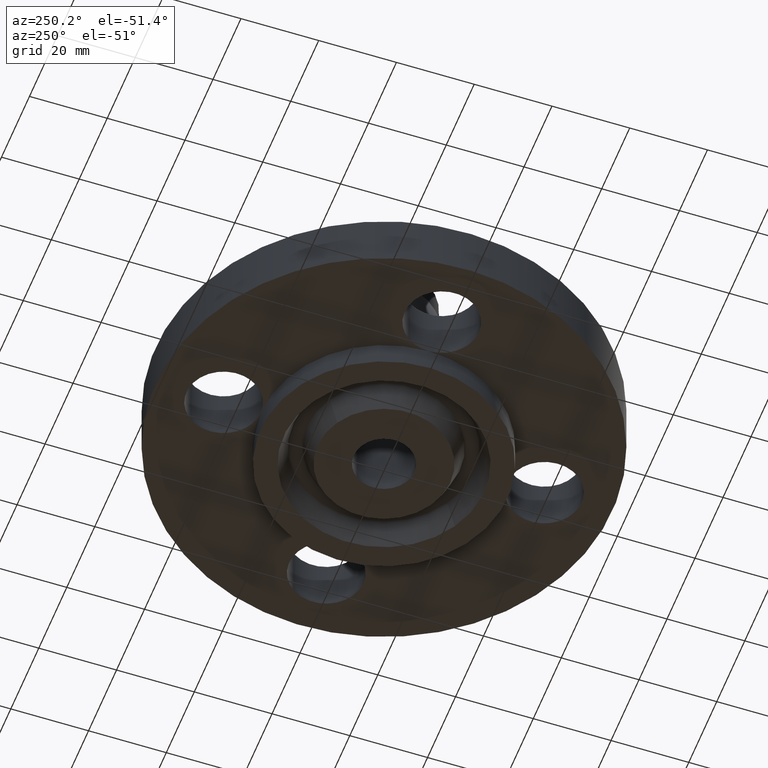
[diagram: clean part render]
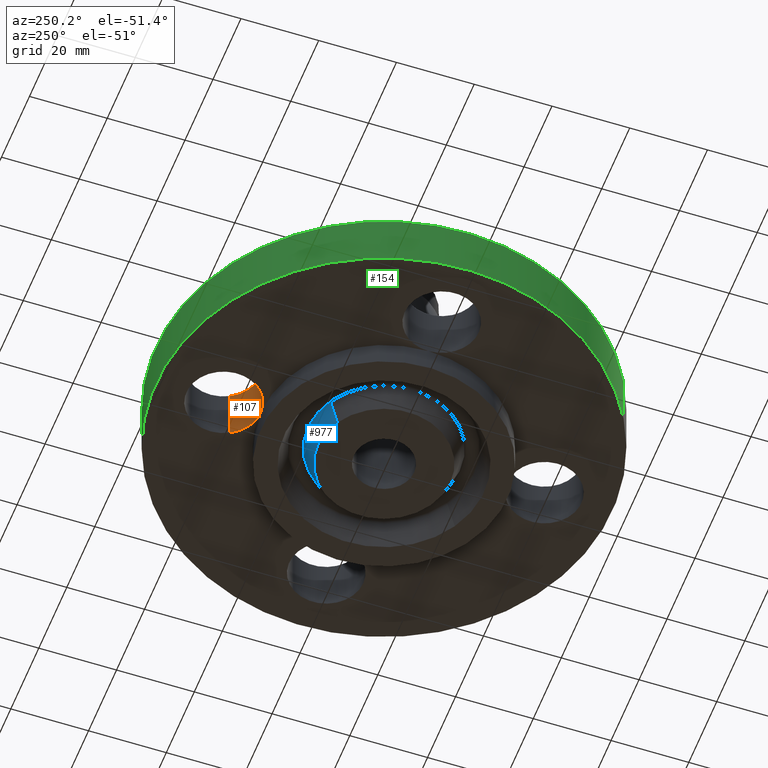
[diagram: same view with three faces highlighted in distinct colors, each labeled with its STEP entity id]
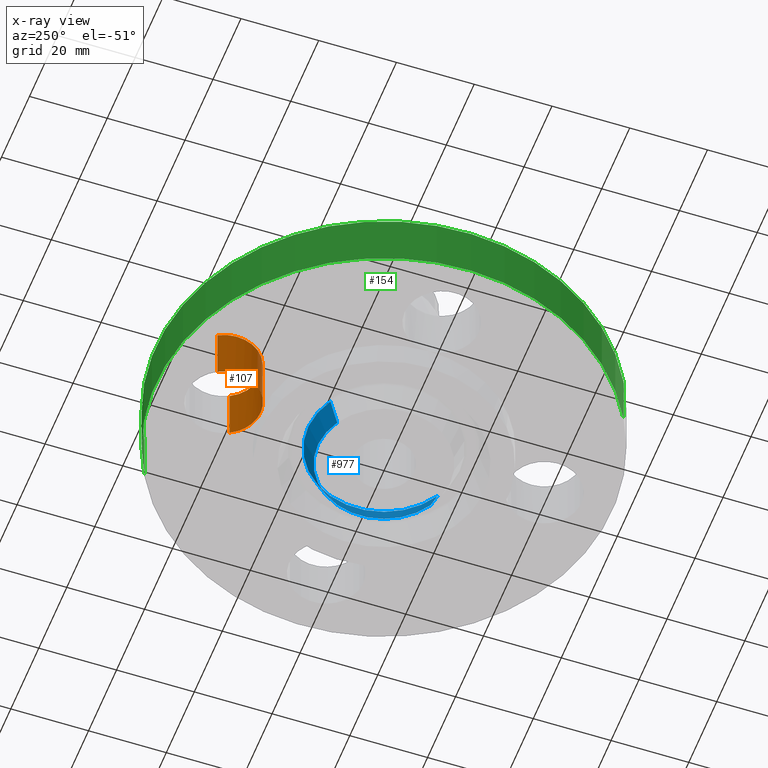
[diagram: x-ray of the same camera — body ghosted, the three highlighted faces saturated]
A machine part, auxiliary view with three faces highlighted in distinct colors.
The next image is the same camera in x-ray (body ghosted, the three faces saturated) — at least one of them is partly hidden behind the body in this view.
Their STEP definitions:

[orange] entity #107 — the highlighted cylindrical surface (partial cylindrical patch) has radius 9.525 mm, axis along (0, -0, -1).
#38=AXIS2_PLACEMENT_3D('Cylinder Axis2P3D',#35,#36,#37) ;
#85=AXIS2_PLACEMENT_3D('Circle Axis2P3D',#83,#84,$) ;
#92=AXIS2_PLACEMENT_3D('Circle Axis2P3D',#90,#91,$) ;
#97=AXIS2_PLACEMENT_3D('Circle Axis2P3D',#95,#96,$) ;
#35=CARTESIAN_POINT('Axis2P3D Location',(0.,1.62500000001,0.556062992128)) ;
#40=CARTESIAN_POINT('Line Origine',(-0.32909346071,1.80478457698,0.280000000001)) ;
#44=CARTESIAN_POINT('Vertex',(-0.32909346071,1.80478457698,-6.99353086378E-017)) ;
#46=CARTESIAN_POINT('Vertex',(-0.32909346071,1.80478457698,0.560000000002)) ;
#53=CARTESIAN_POINT('Vertex',(0.32909346071,1.44521542303,-6.99353086378E-017)) ;
#56=CARTESIAN_POINT('Line Origine',(0.32909346071,1.44521542303,0.280000000001)) ;
#60=CARTESIAN_POINT('Vertex',(0.32909346071,1.44521542303,0.560000000002)) ;
#83=CARTESIAN_POINT('Axis2P3D Location',(0.,1.62500000001,0.)) ;
#87=CARTESIAN_POINT('Vertex',(3.90510912389E-015,1.25000000001,1.39870617276E-016)) ;
#90=CARTESIAN_POINT('Axis2P3D Location',(0.,1.62500000001,0.)) ;
#95=CARTESIAN_POINT('Axis2P3D Location',(0.,1.62500000001,0.560000000002)) ;
#36=DIRECTION('Axis2P3D Direction',(0.,-0.,-0.0393700787402)) ;
#37=DIRECTION('Axis2P3D XDirection',(0.0345504945626,-0.0188750212049,0.)) ;
#41=DIRECTION('Vector Direction',(0.,0.,-0.0393700787402)) ;
#57=DIRECTION('Vector Direction',(0.,0.,-0.0393700787402)) ;
#84=DIRECTION('Axis2P3D Direction',(0.,-0.,-0.0393700787402)) ;
#91=DIRECTION('Axis2P3D Direction',(0.,-0.,-0.0393700787402)) ;
#96=DIRECTION('Axis2P3D Direction',(0.,-0.,-0.0393700787402)) ;
#42=VECTOR('Line Direction',#41,0.0393700787402) ;
#58=VECTOR('Line Direction',#57,0.0393700787402) ;
#101=ORIENTED_EDGE('',*,*,#62,.F.) ;
#102=ORIENTED_EDGE('',*,*,#89,.T.) ;
#103=ORIENTED_EDGE('',*,*,#94,.T.) ;
#104=ORIENTED_EDGE('',*,*,#48,.T.) ;
#105=ORIENTED_EDGE('',*,*,#99,.F.) ;
#107=ADVANCED_FACE('PartBody',(#106),#39,.F.) ;
#86=CIRCLE('generated circle',#85,0.375000000001) ;
#93=CIRCLE('generated circle',#92,0.375000000001) ;
#98=CIRCLE('generated circle',#97,0.375000000001) ;
#39=CYLINDRICAL_SURFACE('generated cylinder',#38,0.375000000001) ;
#48=EDGE_CURVE('',#45,#47,#43,.F.) ;
#62=EDGE_CURVE('',#54,#61,#59,.F.) ;
#89=EDGE_CURVE('',#54,#88,#86,.T.) ;
#94=EDGE_CURVE('',#88,#45,#93,.T.) ;
#99=EDGE_CURVE('',#61,#47,#98,.T.) ;
#100=EDGE_LOOP('',(#101,#102,#103,#104,#105)) ;
#106=FACE_OUTER_BOUND('',#100,.T.) ;
#43=LINE('Line',#40,#42) ;
#59=LINE('Line',#56,#58) ;
#45=VERTEX_POINT('',#44) ;
#47=VERTEX_POINT('',#46) ;
#54=VERTEX_POINT('',#53) ;
#61=VERTEX_POINT('',#60) ;
#88=VERTEX_POINT('',#87) ;

[blue] entity #977 — the highlighted conical surface has half-angle 23 deg.
#783=AXIS2_PLACEMENT_3D('Circle Axis2P3D',#781,#782,$) ;
#927=AXIS2_PLACEMENT_3D('Circle Axis2P3D',#925,#926,$) ;
#959=AXIS2_PLACEMENT_3D('Cone Axis2P3D',#956,#957,#958) ;
#781=CARTESIAN_POINT('Axis2P3D Location',(1.39870617276E-016,0.,-0.250000000001)) ;
#785=CARTESIAN_POINT('Vertex',(-0.322173961943,0.589735481593,-0.250000000001)) ;
#787=CARTESIAN_POINT('Vertex',(0.322173961943,-0.589735481593,-0.250000000001)) ;
#922=CARTESIAN_POINT('Vertex',(0.369206329292,-0.675827652547,-0.0188873350169)) ;
#925=CARTESIAN_POINT('Axis2P3D Location',(0.,0.,-0.0188873350169)) ;
#929=CARTESIAN_POINT('Vertex',(-0.369206329292,0.675827652547,-0.0188873350169)) ;
#956=CARTESIAN_POINT('Axis2P3D Location',(0.,0.,-0.310000000001)) ;
#961=CARTESIAN_POINT('Line Origine',(-0.345690145618,0.63278156707,-0.134443667509)) ;
#966=CARTESIAN_POINT('Line Origine',(0.345690145618,-0.63278156707,-0.134443667509)) ;
#782=DIRECTION('Axis2P3D Direction',(0.,0.,-0.0393700787402)) ;
#926=DIRECTION('Axis2P3D Direction',(0.,0.,0.0393700787402)) ;
#957=DIRECTION('Axis2P3D Direction',(0.,0.,0.0393700787402)) ;
#958=DIRECTION('Axis2P3D XDirection',(-0.0188750212049,0.0345504945626,0.)) ;
#962=DIRECTION('Vector Direction',(-0.00737505833565,0.0134999537303,0.0362403485611)) ;
#967=DIRECTION('Vector Direction',(0.00737505833565,-0.0134999537303,0.0362403485611)) ;
#963=VECTOR('Line Direction',#962,0.0393700787402) ;
#968=VECTOR('Line Direction',#967,0.0393700787402) ;
#972=ORIENTED_EDGE('',*,*,#965,.F.) ;
#973=ORIENTED_EDGE('',*,*,#931,.F.) ;
#974=ORIENTED_EDGE('',*,*,#970,.T.) ;
#975=ORIENTED_EDGE('',*,*,#789,.F.) ;
#977=ADVANCED_FACE('PartBody',(#976),#960,.T.) ;
#784=CIRCLE('generated circle',#783,0.672000000003) ;
#928=CIRCLE('generated circle',#927,0.770101505996) ;
#960=CONICAL_SURFACE('Cone',#959,0.64653151103,0.401425727959) ;
#789=EDGE_CURVE('',#786,#788,#784,.T.) ;
#931=EDGE_CURVE('',#923,#930,#928,.T.) ;
#965=EDGE_CURVE('',#930,#786,#964,.F.) ;
#970=EDGE_CURVE('',#923,#788,#969,.F.) ;
#971=EDGE_LOOP('',(#972,#973,#974,#975)) ;
#976=FACE_OUTER_BOUND('',#971,.T.) ;
#964=LINE('Line',#961,#963) ;
#969=LINE('Line',#966,#968) ;
#786=VERTEX_POINT('',#785) ;
#788=VERTEX_POINT('',#787) ;
#923=VERTEX_POINT('',#922) ;
#930=VERTEX_POINT('',#929) ;

[green] entity #154 — the highlighted cylindrical surface (partial cylindrical patch) has radius 58.674 mm, axis along (0, 0, -1).
#118=AXIS2_PLACEMENT_3D('Cylinder Axis2P3D',#115,#116,#117) ;
#122=AXIS2_PLACEMENT_3D('Circle Axis2P3D',#120,#121,$) ;
#138=AXIS2_PLACEMENT_3D('Circle Axis2P3D',#136,#137,$) ;
#115=CARTESIAN_POINT('Axis2P3D Location',(0.,0.,0.970000000004)) ;
#120=CARTESIAN_POINT('Axis2P3D Location',(0.,0.,1.39870617276E-016)) ;
#124=CARTESIAN_POINT('Vertex',(-1.10747299418,-2.02721571797,1.39870617276E-016)) ;
#126=CARTESIAN_POINT('Vertex',(1.10747299418,2.02721571797,1.39870617276E-016)) ;
#129=CARTESIAN_POINT('Line Origine',(-1.10747299418,-2.02721571797,0.280000000001)) ;
#133=CARTESIAN_POINT('Vertex',(-1.10747299418,-2.02721571797,0.560000000002)) ;
#136=CARTESIAN_POINT('Axis2P3D Location',(0.,0.,0.560000000002)) ;
#140=CARTESIAN_POINT('Vertex',(1.10747299418,2.02721571797,0.560000000002)) ;
#143=CARTESIAN_POINT('Line Origine',(1.10747299418,2.02721571797,0.280000000001)) ;
#116=DIRECTION('Axis2P3D Direction',(0.,0.,-0.0393700787402)) ;
#117=DIRECTION('Axis2P3D XDirection',(0.0188750212049,0.0345504945626,0.)) ;
#121=DIRECTION('Axis2P3D Direction',(0.,0.,-0.0393700787402)) ;
#130=DIRECTION('Vector Direction',(0.,0.,-0.0393700787402)) ;
#137=DIRECTION('Axis2P3D Direction',(0.,0.,-0.0393700787402)) ;
#144=DIRECTION('Vector Direction',(0.,0.,-0.0393700787402)) ;
#131=VECTOR('Line Direction',#130,0.0393700787402) ;
#145=VECTOR('Line Direction',#144,0.0393700787402) ;
#149=ORIENTED_EDGE('',*,*,#128,.F.) ;
#150=ORIENTED_EDGE('',*,*,#135,.T.) ;
#151=ORIENTED_EDGE('',*,*,#142,.T.) ;
#152=ORIENTED_EDGE('',*,*,#147,.F.) ;
#154=ADVANCED_FACE('PartBody',(#153),#119,.T.) ;
#123=CIRCLE('generated circle',#122,2.31000000001) ;
#139=CIRCLE('generated circle',#138,2.31000000001) ;
#119=CYLINDRICAL_SURFACE('generated cylinder',#118,2.31000000001) ;
#128=EDGE_CURVE('',#125,#127,#123,.T.) ;
#135=EDGE_CURVE('',#125,#134,#132,.F.) ;
#142=EDGE_CURVE('',#134,#141,#139,.T.) ;
#147=EDGE_CURVE('',#127,#141,#146,.F.) ;
#148=EDGE_LOOP('',(#149,#150,#151,#152)) ;
#153=FACE_OUTER_BOUND('',#148,.T.) ;
#132=LINE('Line',#129,#131) ;
#146=LINE('Line',#143,#145) ;
#125=VERTEX_POINT('',#124) ;
#127=VERTEX_POINT('',#126) ;
#134=VERTEX_POINT('',#133) ;
#141=VERTEX_POINT('',#140) ;